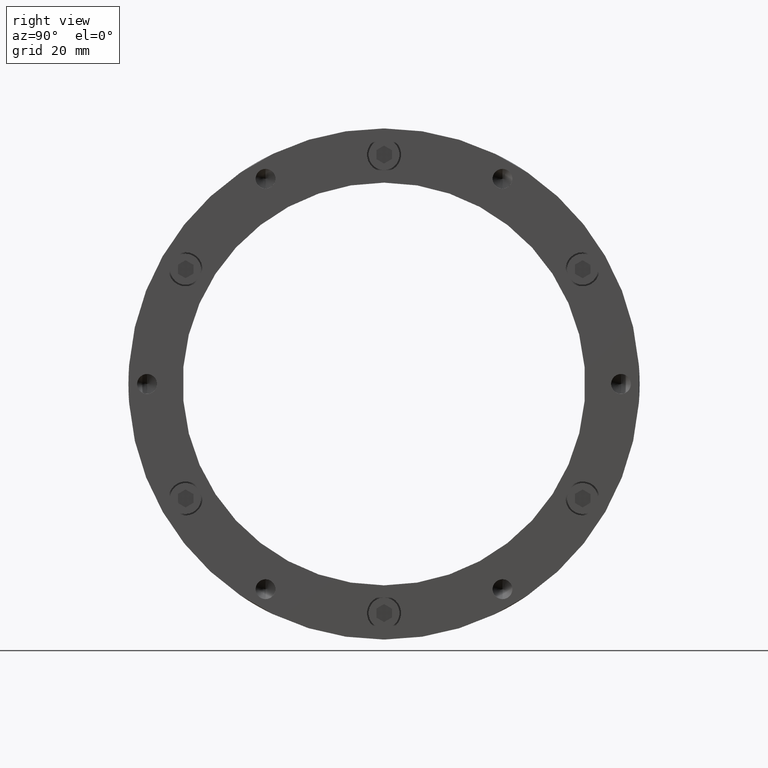
[diagram: clean part render]
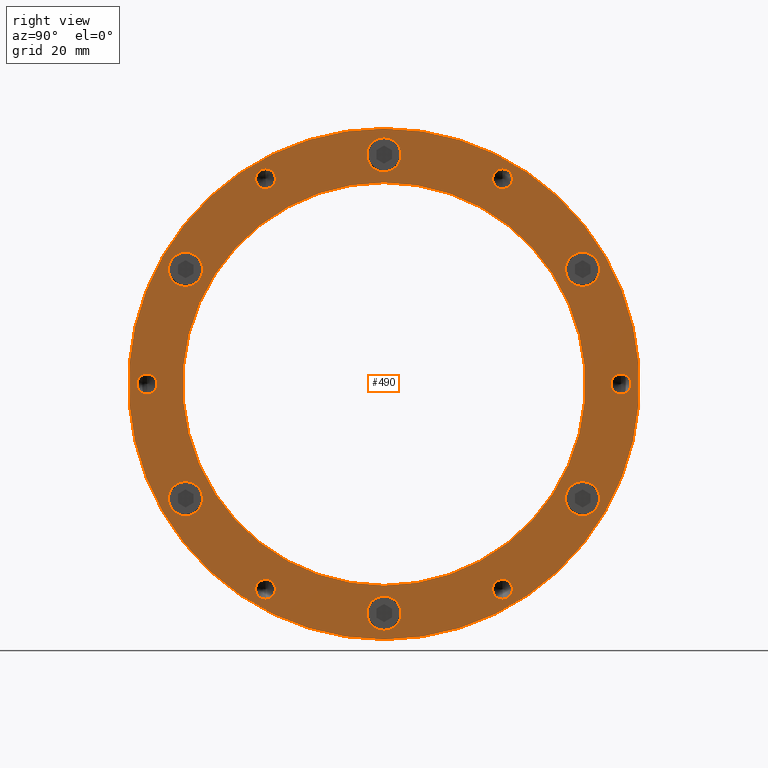
[diagram: same view with one face highlighted and labeled with its STEP entity id]
A machine part, right view. The second image highlights one B-rep face of the part: STEP entity #490.
In plain terms, the highlighted planar face has unit normal (1, 0, 0).
Its self-contained STEP definition (entity closure, byte-faithful):
#12 = CIRCLE ( 'NONE', #3628, 3.199999999999994400 ) ;
#18 = CIRCLE ( 'NONE', #3633, 3.200000000000001100 ) ;
#25 = CIRCLE ( 'NONE', #3636, 3.199999999999994400 ) ;
#41 = CIRCLE ( 'NONE', #3609, 5.499999999999998200 ) ;
#300 = CIRCLE ( 'NONE', #3686, 5.500000000000005300 ) ;
#315 = CIRCLE ( 'NONE', #3706, 5.499999999999998200 ) ;
#360 = CIRCLE ( 'NONE', #3676, 5.499999999999998200 ) ;
#390 = CIRCLE ( 'NONE', #3669, 5.500000000000005300 ) ;
#490 = ADVANCED_FACE ( 'NONE', ( #2649, #2644, #2639, #2645, #2648, #2643, #2638, #2636, #2634, #2627, #2625, #2624, #2459, #2458 ), #3094, .T. ) ;
#760 = CARTESIAN_POINT ( 'NONE',  ( 35.99999999999998600, 0.0000000000000000000, 0.0000000000000000000 ) ) ;
#761 = DIRECTION ( 'NONE',  ( -1.000000000000000000, -0.0000000000000000000, -0.0000000000000000000 ) ) ;
#762 = DIRECTION ( 'NONE',  ( 0.0000000000000000000, 0.0000000000000000000, -1.000000000000000000 ) ) ;
#770 = CARTESIAN_POINT ( 'NONE',  ( 35.99999999999998600, 0.0000000000000000000, 0.0000000000000000000 ) ) ;
#771 = DIRECTION ( 'NONE',  ( -1.000000000000000000, -0.0000000000000000000, -0.0000000000000000000 ) ) ;
#772 = DIRECTION ( 'NONE',  ( 0.0000000000000000000, 0.0000000000000000000, -1.000000000000000000 ) ) ;
#780 = CARTESIAN_POINT ( 'NONE',  ( 35.99999999999998600, 0.0000000000000000000, 74.00000000000000000 ) ) ;
#781 = DIRECTION ( 'NONE',  ( -1.000000000000000000, -0.0000000000000000000, -0.0000000000000000000 ) ) ;
#782 = DIRECTION ( 'NONE',  ( 0.0000000000000000000, 0.0000000000000000000, -1.000000000000000000 ) ) ;
#788 = CARTESIAN_POINT ( 'NONE',  ( 35.99999999999998600, -64.08587988004845200, 37.00000000000001400 ) ) ;
#789 = DIRECTION ( 'NONE',  ( -1.000000000000000000, -0.0000000000000000000, -0.0000000000000000000 ) ) ;
#790 = DIRECTION ( 'NONE',  ( 0.0000000000000000000, 0.0000000000000000000, -1.000000000000000000 ) ) ;
#824 = CARTESIAN_POINT ( 'NONE',  ( 35.99999999999998600, 0.0000000000000000000, 0.0000000000000000000 ) ) ;
#825 = DIRECTION ( 'NONE',  ( -1.000000000000000000, -0.0000000000000000000, -0.0000000000000000000 ) ) ;
#826 = DIRECTION ( 'NONE',  ( 0.0000000000000000000, 0.0000000000000000000, -1.000000000000000000 ) ) ;
#827 = CARTESIAN_POINT ( 'NONE',  ( 35.99999999999998600, 0.0000000000000000000, 0.0000000000000000000 ) ) ;
#828 = DIRECTION ( 'NONE',  ( -1.000000000000000000, -0.0000000000000000000, -0.0000000000000000000 ) ) ;
#829 = DIRECTION ( 'NONE',  ( 0.0000000000000000000, 0.0000000000000000000, -1.000000000000000000 ) ) ;
#830 = CARTESIAN_POINT ( 'NONE',  ( 35.99999999999998600, 0.0000000000000000000, 74.00000000000000000 ) ) ;
#831 = DIRECTION ( 'NONE',  ( -1.000000000000000000, -0.0000000000000000000, -0.0000000000000000000 ) ) ;
#832 = DIRECTION ( 'NONE',  ( 0.0000000000000000000, 0.0000000000000000000, -1.000000000000000000 ) ) ;
#837 = CARTESIAN_POINT ( 'NONE',  ( 35.99999999999998600, -64.08587988004845200, 37.00000000000001400 ) ) ;
#838 = DIRECTION ( 'NONE',  ( -1.000000000000000000, -0.0000000000000000000, -0.0000000000000000000 ) ) ;
#839 = DIRECTION ( 'NONE',  ( 0.0000000000000000000, 0.0000000000000000000, -1.000000000000000000 ) ) ;
#843 = CARTESIAN_POINT ( 'NONE',  ( 35.99999999999998600, -64.08587988004848100, -36.99999999999998600 ) ) ;
#844 = DIRECTION ( 'NONE',  ( -1.000000000000000000, -0.0000000000000000000, -0.0000000000000000000 ) ) ;
#845 = DIRECTION ( 'NONE',  ( 0.0000000000000000000, 0.0000000000000000000, -1.000000000000000000 ) ) ;
#849 = CARTESIAN_POINT ( 'NONE',  ( 35.99999999999998600, -1.332268000000000100E-014, -74.00000000000000000 ) ) ;
#850 = DIRECTION ( 'NONE',  ( -1.000000000000000000, -0.0000000000000000000, -0.0000000000000000000 ) ) ;
#851 = DIRECTION ( 'NONE',  ( 0.0000000000000000000, 0.0000000000000000000, -1.000000000000000000 ) ) ;
#855 = CARTESIAN_POINT ( 'NONE',  ( 35.99999999999998600, 64.08587988004843800, -37.00000000000003600 ) ) ;
#856 = DIRECTION ( 'NONE',  ( -1.000000000000000000, -0.0000000000000000000, -0.0000000000000000000 ) ) ;
#857 = DIRECTION ( 'NONE',  ( 0.0000000000000000000, 0.0000000000000000000, -1.000000000000000000 ) ) ;
#861 = CARTESIAN_POINT ( 'NONE',  ( 35.99999999999998600, 64.08587988004850900, 36.99999999999995000 ) ) ;
#862 = DIRECTION ( 'NONE',  ( -1.000000000000000000, -0.0000000000000000000, -0.0000000000000000000 ) ) ;
#863 = DIRECTION ( 'NONE',  ( 0.0000000000000000000, 0.0000000000000000000, -1.000000000000000000 ) ) ;
#867 = CARTESIAN_POINT ( 'NONE',  ( 35.99999999999998600, -38.25000000000004300, 66.25094338950955800 ) ) ;
#868 = DIRECTION ( 'NONE',  ( -1.000000000000000000, -0.0000000000000000000, -0.0000000000000000000 ) ) ;
#869 = DIRECTION ( 'NONE',  ( 0.0000000000000000000, 0.0000000000000000000, -1.000000000000000000 ) ) ;
#870 = CARTESIAN_POINT ( 'NONE',  ( 35.99999999999998600, -76.50000000000002800, -3.108623999999999800E-014 ) ) ;
#871 = DIRECTION ( 'NONE',  ( -1.000000000000000000, -0.0000000000000000000, -0.0000000000000000000 ) ) ;
#872 = DIRECTION ( 'NONE',  ( 0.0000000000000000000, 0.0000000000000000000, -1.000000000000000000 ) ) ;
#873 = CARTESIAN_POINT ( 'NONE',  ( 35.99999999999998600, -38.24999999999999300, -66.25094338950958700 ) ) ;
#874 = DIRECTION ( 'NONE',  ( -1.000000000000000000, -0.0000000000000000000, -0.0000000000000000000 ) ) ;
#875 = DIRECTION ( 'NONE',  ( 0.0000000000000000000, 0.0000000000000000000, -1.000000000000000000 ) ) ;
#876 = CARTESIAN_POINT ( 'NONE',  ( 35.99999999999998600, 38.25000000000004300, -66.25094338950955800 ) ) ;
#877 = DIRECTION ( 'NONE',  ( -1.000000000000000000, -0.0000000000000000000, -0.0000000000000000000 ) ) ;
#878 = DIRECTION ( 'NONE',  ( 0.0000000000000000000, 0.0000000000000000000, -1.000000000000000000 ) ) ;
#879 = CARTESIAN_POINT ( 'NONE',  ( 35.99999999999998600, 76.50000000000002800, 0.0000000000000000000 ) ) ;
#880 = DIRECTION ( 'NONE',  ( -1.000000000000000000, -0.0000000000000000000, -0.0000000000000000000 ) ) ;
#881 = DIRECTION ( 'NONE',  ( 0.0000000000000000000, 0.0000000000000000000, -1.000000000000000000 ) ) ;
#882 = CARTESIAN_POINT ( 'NONE',  ( 35.99999999999998600, 38.25000000000003600, 66.25094338950957300 ) ) ;
#883 = DIRECTION ( 'NONE',  ( -1.000000000000000000, -0.0000000000000000000, -0.0000000000000000000 ) ) ;
#884 = DIRECTION ( 'NONE',  ( 0.0000000000000000000, 0.0000000000000000000, -1.000000000000000000 ) ) ;
#934 = CARTESIAN_POINT ( 'NONE',  ( 35.99999999999998600, 38.25000000000003600, 66.25094338950957300 ) ) ;
#935 = DIRECTION ( 'NONE',  ( -1.000000000000000000, -0.0000000000000000000, -0.0000000000000000000 ) ) ;
#936 = DIRECTION ( 'NONE',  ( 0.0000000000000000000, 0.0000000000000000000, -1.000000000000000000 ) ) ;
#944 = CARTESIAN_POINT ( 'NONE',  ( 35.99999999999998600, 76.50000000000002800, 0.0000000000000000000 ) ) ;
#945 = DIRECTION ( 'NONE',  ( -1.000000000000000000, -0.0000000000000000000, -0.0000000000000000000 ) ) ;
#946 = DIRECTION ( 'NONE',  ( 0.0000000000000000000, 0.0000000000000000000, -1.000000000000000000 ) ) ;
#954 = CARTESIAN_POINT ( 'NONE',  ( 35.99999999999998600, 38.25000000000004300, -66.25094338950955800 ) ) ;
#955 = DIRECTION ( 'NONE',  ( -1.000000000000000000, -0.0000000000000000000, -0.0000000000000000000 ) ) ;
#956 = DIRECTION ( 'NONE',  ( 0.0000000000000000000, 0.0000000000000000000, -1.000000000000000000 ) ) ;
#964 = CARTESIAN_POINT ( 'NONE',  ( 35.99999999999998600, -38.24999999999999300, -66.25094338950958700 ) ) ;
#965 = DIRECTION ( 'NONE',  ( -1.000000000000000000, -0.0000000000000000000, -0.0000000000000000000 ) ) ;
#966 = DIRECTION ( 'NONE',  ( 0.0000000000000000000, 0.0000000000000000000, -1.000000000000000000 ) ) ;
#974 = CARTESIAN_POINT ( 'NONE',  ( 35.99999999999998600, -76.50000000000002800, -3.108623999999999800E-014 ) ) ;
#975 = DIRECTION ( 'NONE',  ( -1.000000000000000000, -0.0000000000000000000, -0.0000000000000000000 ) ) ;
#976 = DIRECTION ( 'NONE',  ( 0.0000000000000000000, 0.0000000000000000000, -1.000000000000000000 ) ) ;
#984 = CARTESIAN_POINT ( 'NONE',  ( 35.99999999999998600, -38.25000000000004300, 66.25094338950955800 ) ) ;
#985 = DIRECTION ( 'NONE',  ( -1.000000000000000000, -0.0000000000000000000, -0.0000000000000000000 ) ) ;
#986 = DIRECTION ( 'NONE',  ( 0.0000000000000000000, 0.0000000000000000000, -1.000000000000000000 ) ) ;
#994 = CARTESIAN_POINT ( 'NONE',  ( 35.99999999999998600, 64.08587988004850900, 36.99999999999995000 ) ) ;
#995 = DIRECTION ( 'NONE',  ( -1.000000000000000000, -0.0000000000000000000, -0.0000000000000000000 ) ) ;
#996 = DIRECTION ( 'NONE',  ( 0.0000000000000000000, 0.0000000000000000000, -1.000000000000000000 ) ) ;
#1004 = CARTESIAN_POINT ( 'NONE',  ( 35.99999999999998600, 64.08587988004843800, -37.00000000000003600 ) ) ;
#1005 = DIRECTION ( 'NONE',  ( -1.000000000000000000, -0.0000000000000000000, -0.0000000000000000000 ) ) ;
#1006 = DIRECTION ( 'NONE',  ( 0.0000000000000000000, 0.0000000000000000000, -1.000000000000000000 ) ) ;
#1014 = CARTESIAN_POINT ( 'NONE',  ( 35.99999999999998600, -1.332268000000000100E-014, -74.00000000000000000 ) ) ;
#1015 = DIRECTION ( 'NONE',  ( -1.000000000000000000, -0.0000000000000000000, -0.0000000000000000000 ) ) ;
#1016 = DIRECTION ( 'NONE',  ( 0.0000000000000000000, 0.0000000000000000000, -1.000000000000000000 ) ) ;
#1024 = CARTESIAN_POINT ( 'NONE',  ( 35.99999999999998600, -64.08587988004848100, -36.99999999999998600 ) ) ;
#1025 = DIRECTION ( 'NONE',  ( -1.000000000000000000, -0.0000000000000000000, -0.0000000000000000000 ) ) ;
#1026 = DIRECTION ( 'NONE',  ( 0.0000000000000000000, 0.0000000000000000000, -1.000000000000000000 ) ) ;
#1966 = ORIENTED_EDGE ( 'NONE', *, *, #2940, .T. ) ;
#1968 = ORIENTED_EDGE ( 'NONE', *, *, #2848, .T. ) ;
#1973 = ORIENTED_EDGE ( 'NONE', *, *, #2924, .T. ) ;
#1977 = ORIENTED_EDGE ( 'NONE', *, *, #2836, .T. ) ;
#1980 = ORIENTED_EDGE ( 'NONE', *, *, #2916, .T. ) ;
#1998 = ORIENTED_EDGE ( 'NONE', *, *, #2827, .T. ) ;
#2003 = ORIENTED_EDGE ( 'NONE', *, *, #2948, .T. ) ;
#2005 = ORIENTED_EDGE ( 'NONE', *, *, #2908, .T. ) ;
#2007 = ORIENTED_EDGE ( 'NONE', *, *, #2900, .T. ) ;
#2014 = ORIENTED_EDGE ( 'NONE', *, *, #2854, .T. ) ;
#2016 = ORIENTED_EDGE ( 'NONE', *, *, #2852, .T. ) ;
#2035 = ORIENTED_EDGE ( 'NONE', *, *, #2600, .T. ) ;
#2046 = ORIENTED_EDGE ( 'NONE', *, *, #2840, .T. ) ;
#2070 = ORIENTED_EDGE ( 'NONE', *, *, #2958, .T. ) ;
#2071 = ORIENTED_EDGE ( 'NONE', *, *, #2817, .T. ) ;
#2072 = ORIENTED_EDGE ( 'NONE', *, *, #2604, .T. ) ;
#2075 = ORIENTED_EDGE ( 'NONE', *, *, #2815, .F. ) ;
#2076 = ORIENTED_EDGE ( 'NONE', *, *, #2823, .T. ) ;
#2077 = ORIENTED_EDGE ( 'NONE', *, *, #2608, .T. ) ;
#2078 = ORIENTED_EDGE ( 'NONE', *, *, #2819, .T. ) ;
#2081 = ORIENTED_EDGE ( 'NONE', *, *, #2832, .T. ) ;
#2086 = ORIENTED_EDGE ( 'NONE', *, *, #2966, .T. ) ;
#2092 = ORIENTED_EDGE ( 'NONE', *, *, #2974, .T. ) ;
#2100 = ORIENTED_EDGE ( 'NONE', *, *, #2932, .T. ) ;
#2112 = ORIENTED_EDGE ( 'NONE', *, *, #2596, .F. ) ;
#2120 = ORIENTED_EDGE ( 'NONE', *, *, #2856, .T. ) ;
#2123 = ORIENTED_EDGE ( 'NONE', *, *, #2846, .T. ) ;
#2128 = ORIENTED_EDGE ( 'NONE', *, *, #2850, .T. ) ;
#2151 = CIRCLE ( 'NONE', #3617, 5.500000000000005300 ) ;
#2153 = CIRCLE ( 'NONE', #3712, 5.499999999999998200 ) ;
#2155 = CIRCLE ( 'NONE', #3745, 5.500000000000005300 ) ;
#2156 = CIRCLE ( 'NONE', #3755, 65.00000000000000000 ) ;
#2157 = CIRCLE ( 'NONE', #3756, 82.50000000000000000 ) ;
#2171 = CIRCLE ( 'NONE', #3794, 5.499999999999998200 ) ;
#2177 = CIRCLE ( 'NONE', #3796, 5.500000000000005300 ) ;
#2182 = CIRCLE ( 'NONE', #3799, 65.00000000000000000 ) ;
#2188 = CIRCLE ( 'NONE', #3801, 82.50000000000000000 ) ;
#2242 = EDGE_LOOP ( 'NONE', ( #2035, #2071 ) ) ;
#2243 = EDGE_LOOP ( 'NONE', ( #2070, #1977 ) ) ;
#2245 = EDGE_LOOP ( 'NONE', ( #2072, #2078 ) ) ;
#2246 = EDGE_LOOP ( 'NONE', ( #2086, #2081 ) ) ;
#2247 = EDGE_LOOP ( 'NONE', ( #2092, #1998 ) ) ;
#2248 = EDGE_LOOP ( 'NONE', ( #2077, #2076 ) ) ;
#2249 = EDGE_LOOP ( 'NONE', ( #2003, #2046 ) ) ;
#2250 = EDGE_LOOP ( 'NONE', ( #1966, #2123 ) ) ;
#2251 = EDGE_LOOP ( 'NONE', ( #2100, #1968 ) ) ;
#2252 = EDGE_LOOP ( 'NONE', ( #1973, #2128 ) ) ;
#2253 = EDGE_LOOP ( 'NONE', ( #1980, #2016 ) ) ;
#2254 = EDGE_LOOP ( 'NONE', ( #2005, #2014 ) ) ;
#2255 = EDGE_LOOP ( 'NONE', ( #2007, #2120 ) ) ;
#2256 = EDGE_LOOP ( 'NONE', ( #2075, #2112 ) ) ;
#2300 = VERTEX_POINT ( 'NONE', #3241 ) ;
#2301 = VERTEX_POINT ( 'NONE', #3239 ) ;
#2304 = VERTEX_POINT ( 'NONE', #3243 ) ;
#2305 = VERTEX_POINT ( 'NONE', #3244 ) ;
#2308 = VERTEX_POINT ( 'NONE', #3247 ) ;
#2309 = VERTEX_POINT ( 'NONE', #3248 ) ;
#2312 = VERTEX_POINT ( 'NONE', #3251 ) ;
#2313 = VERTEX_POINT ( 'NONE', #3252 ) ;
#2316 = VERTEX_POINT ( 'NONE', #3255 ) ;
#2317 = VERTEX_POINT ( 'NONE', #3256 ) ;
#2320 = VERTEX_POINT ( 'NONE', #3259 ) ;
#2321 = VERTEX_POINT ( 'NONE', #3260 ) ;
#2324 = VERTEX_POINT ( 'NONE', #3263 ) ;
#2325 = VERTEX_POINT ( 'NONE', #3264 ) ;
#2328 = VERTEX_POINT ( 'NONE', #3267 ) ;
#2329 = VERTEX_POINT ( 'NONE', #3268 ) ;
#2332 = VERTEX_POINT ( 'NONE', #3271 ) ;
#2333 = VERTEX_POINT ( 'NONE', #3272 ) ;
#2336 = VERTEX_POINT ( 'NONE', #3275 ) ;
#2337 = VERTEX_POINT ( 'NONE', #3276 ) ;
#2340 = VERTEX_POINT ( 'NONE', #3279 ) ;
#2341 = VERTEX_POINT ( 'NONE', #3280 ) ;
#2344 = VERTEX_POINT ( 'NONE', #3283 ) ;
#2345 = VERTEX_POINT ( 'NONE', #3284 ) ;
#2348 = VERTEX_POINT ( 'NONE', #3287 ) ;
#2349 = VERTEX_POINT ( 'NONE', #3288 ) ;
#2351 = VERTEX_POINT ( 'NONE', #3290 ) ;
#2352 = VERTEX_POINT ( 'NONE', #3291 ) ;
#2458 = FACE_OUTER_BOUND ( 'NONE', #2256, .T. ) ;
#2459 = FACE_BOUND ( 'NONE', #2255, .T. ) ;
#2596 = EDGE_CURVE ( 'NONE', #2352, #2351, #2188, .T. ) ;
#2600 = EDGE_CURVE ( 'NONE', #2349, #2348, #2182, .T. ) ;
#2604 = EDGE_CURVE ( 'NONE', #2345, #2344, #2177, .T. ) ;
#2608 = EDGE_CURVE ( 'NONE', #2341, #2340, #2171, .T. ) ;
#2624 = FACE_BOUND ( 'NONE', #2254, .T. ) ;
#2625 = FACE_BOUND ( 'NONE', #2253, .T. ) ;
#2627 = FACE_BOUND ( 'NONE', #2252, .T. ) ;
#2634 = FACE_BOUND ( 'NONE', #2251, .T. ) ;
#2636 = FACE_BOUND ( 'NONE', #2250, .T. ) ;
#2638 = FACE_BOUND ( 'NONE', #2249, .T. ) ;
#2639 = FACE_BOUND ( 'NONE', #2248, .T. ) ;
#2643 = FACE_BOUND ( 'NONE', #2243, .T. ) ;
#2644 = FACE_BOUND ( 'NONE', #2245, .T. ) ;
#2645 = FACE_BOUND ( 'NONE', #2247, .T. ) ;
#2648 = FACE_BOUND ( 'NONE', #2246, .T. ) ;
#2649 = FACE_BOUND ( 'NONE', #2242, .T. ) ;
#2815 = EDGE_CURVE ( 'NONE', #2351, #2352, #2157, .T. ) ;
#2817 = EDGE_CURVE ( 'NONE', #2348, #2349, #2156, .T. ) ;
#2819 = EDGE_CURVE ( 'NONE', #2344, #2345, #2155, .T. ) ;
#2823 = EDGE_CURVE ( 'NONE', #2340, #2341, #2153, .T. ) ;
#2827 = EDGE_CURVE ( 'NONE', #2336, #2337, #315, .T. ) ;
#2832 = EDGE_CURVE ( 'NONE', #2332, #2333, #300, .T. ) ;
#2836 = EDGE_CURVE ( 'NONE', #2328, #2329, #360, .T. ) ;
#2840 = EDGE_CURVE ( 'NONE', #2324, #2325, #390, .T. ) ;
#2846 = EDGE_CURVE ( 'NONE', #2320, #2321, #4761, .T. ) ;
#2848 = EDGE_CURVE ( 'NONE', #2316, #2317, #4760, .T. ) ;
#2850 = EDGE_CURVE ( 'NONE', #2312, #2313, #4759, .T. ) ;
#2852 = EDGE_CURVE ( 'NONE', #2308, #2309, #4758, .T. ) ;
#2854 = EDGE_CURVE ( 'NONE', #2304, #2305, #4757, .T. ) ;
#2856 = EDGE_CURVE ( 'NONE', #2300, #2301, #4756, .T. ) ;
#2900 = EDGE_CURVE ( 'NONE', #2301, #2300, #25, .T. ) ;
#2908 = EDGE_CURVE ( 'NONE', #2305, #2304, #18, .T. ) ;
#2916 = EDGE_CURVE ( 'NONE', #2309, #2308, #12, .T. ) ;
#2924 = EDGE_CURVE ( 'NONE', #2313, #2312, #3819, .T. ) ;
#2932 = EDGE_CURVE ( 'NONE', #2317, #2316, #3823, .T. ) ;
#2940 = EDGE_CURVE ( 'NONE', #2321, #2320, #3815, .T. ) ;
#2948 = EDGE_CURVE ( 'NONE', #2325, #2324, #2151, .T. ) ;
#2958 = EDGE_CURVE ( 'NONE', #2329, #2328, #4622, .T. ) ;
#2966 = EDGE_CURVE ( 'NONE', #2333, #2332, #3826, .T. ) ;
#2974 = EDGE_CURVE ( 'NONE', #2337, #2336, #41, .T. ) ;
#3089 = DIRECTION ( 'NONE',  ( 1.000000000000000000, -0.0000000000000000000, 0.0000000000000000000 ) ) ;
#3093 = CARTESIAN_POINT ( 'NONE',  ( 35.99999999999998600, 73.75000000000000000, 0.0000000000000000000 ) ) ;
#3094 = PLANE ( 'NONE',  #3689 ) ;
#3095 = DIRECTION ( 'NONE',  ( 0.0000000000000000000, 0.0000000000000000000, -1.000000000000000000 ) ) ;
#3239 = CARTESIAN_POINT ( 'NONE',  ( 35.99999999999998600, 38.25000000000003600, 63.05094338950957700 ) ) ;
#3241 = CARTESIAN_POINT ( 'NONE',  ( 35.99999999999998600, 38.25000000000003600, 69.45094338950956100 ) ) ;
#3243 = CARTESIAN_POINT ( 'NONE',  ( 35.99999999999998600, 76.50000000000002800, 3.200000000000001100 ) ) ;
#3244 = CARTESIAN_POINT ( 'NONE',  ( 35.99999999999998600, 76.50000000000002800, -3.200000000000001100 ) ) ;
#3247 = CARTESIAN_POINT ( 'NONE',  ( 35.99999999999998600, 38.25000000000004300, -63.05094338950956300 ) ) ;
#3248 = CARTESIAN_POINT ( 'NONE',  ( 35.99999999999998600, 38.25000000000004300, -69.45094338950954700 ) ) ;
#3251 = CARTESIAN_POINT ( 'NONE',  ( 35.99999999999998600, -38.24999999999999300, -63.05094338950959100 ) ) ;
#3252 = CARTESIAN_POINT ( 'NONE',  ( 35.99999999999998600, -38.24999999999999300, -69.45094338950957500 ) ) ;
#3255 = CARTESIAN_POINT ( 'NONE',  ( 35.99999999999998600, -76.50000000000002800, 3.199999999999970000 ) ) ;
#3256 = CARTESIAN_POINT ( 'NONE',  ( 35.99999999999998600, -76.50000000000002800, -3.200000000000032200 ) ) ;
#3259 = CARTESIAN_POINT ( 'NONE',  ( 35.99999999999998600, -38.25000000000004300, 69.45094338950954700 ) ) ;
#3260 = CARTESIAN_POINT ( 'NONE',  ( 35.99999999999998600, -38.25000000000004300, 63.05094338950956300 ) ) ;
#3263 = CARTESIAN_POINT ( 'NONE',  ( 35.99999999999998600, 64.08587988004850900, 42.49999999999995700 ) ) ;
#3264 = CARTESIAN_POINT ( 'NONE',  ( 35.99999999999998600, 64.08587988004850900, 31.49999999999994300 ) ) ;
#3267 = CARTESIAN_POINT ( 'NONE',  ( 35.99999999999998600, 64.08587988004843800, -31.50000000000003600 ) ) ;
#3268 = CARTESIAN_POINT ( 'NONE',  ( 35.99999999999998600, 64.08587988004843800, -42.50000000000002800 ) ) ;
#3271 = CARTESIAN_POINT ( 'NONE',  ( 35.99999999999998600, -1.264912426046895700E-014, -68.49999999999998600 ) ) ;
#3272 = CARTESIAN_POINT ( 'NONE',  ( 35.99999999999998600, -1.332268000000000100E-014, -79.50000000000000000 ) ) ;
#3275 = CARTESIAN_POINT ( 'NONE',  ( 35.99999999999998600, -64.08587988004848100, -31.49999999999998600 ) ) ;
#3276 = CARTESIAN_POINT ( 'NONE',  ( 35.99999999999998600, -64.08587988004848100, -42.49999999999998600 ) ) ;
#3279 = CARTESIAN_POINT ( 'NONE',  ( 35.99999999999998600, -64.08587988004845200, 42.50000000000000700 ) ) ;
#3280 = CARTESIAN_POINT ( 'NONE',  ( 35.99999999999998600, -64.08587988004845200, 31.50000000000001400 ) ) ;
#3283 = CARTESIAN_POINT ( 'NONE',  ( 35.99999999999998600, 6.735557395310435100E-016, 79.50000000000000000 ) ) ;
#3284 = CARTESIAN_POINT ( 'NONE',  ( 35.99999999999998600, 0.0000000000000000000, 68.49999999999998600 ) ) ;
#3287 = CARTESIAN_POINT ( 'NONE',  ( 35.99999999999998600, 7.960204194457797300E-015, 65.00000000000000000 ) ) ;
#3288 = CARTESIAN_POINT ( 'NONE',  ( 35.99999999999998600, 0.0000000000000000000, -65.00000000000000000 ) ) ;
#3290 = CARTESIAN_POINT ( 'NONE',  ( 35.99999999999998600, 0.0000000000000000000, -82.50000000000000000 ) ) ;
#3291 = CARTESIAN_POINT ( 'NONE',  ( 35.99999999999998600, 1.010333609296566400E-014, 82.50000000000000000 ) ) ;
#3609 = AXIS2_PLACEMENT_3D ( 'NONE', #1024, #1025, #1026 ) ;
#3612 = AXIS2_PLACEMENT_3D ( 'NONE', #1014, #1015, #1016 ) ;
#3615 = AXIS2_PLACEMENT_3D ( 'NONE', #1004, #1005, #1006 ) ;
#3617 = AXIS2_PLACEMENT_3D ( 'NONE', #994, #995, #996 ) ;
#3620 = AXIS2_PLACEMENT_3D ( 'NONE', #984, #985, #986 ) ;
#3623 = AXIS2_PLACEMENT_3D ( 'NONE', #974, #975, #976 ) ;
#3625 = AXIS2_PLACEMENT_3D ( 'NONE', #964, #965, #966 ) ;
#3628 = AXIS2_PLACEMENT_3D ( 'NONE', #954, #955, #956 ) ;
#3633 = AXIS2_PLACEMENT_3D ( 'NONE', #944, #945, #946 ) ;
#3636 = AXIS2_PLACEMENT_3D ( 'NONE', #934, #935, #936 ) ;
#3652 = AXIS2_PLACEMENT_3D ( 'NONE', #882, #883, #884 ) ;
#3653 = AXIS2_PLACEMENT_3D ( 'NONE', #879, #880, #881 ) ;
#3654 = AXIS2_PLACEMENT_3D ( 'NONE', #876, #877, #878 ) ;
#3659 = AXIS2_PLACEMENT_3D ( 'NONE', #873, #874, #875 ) ;
#3666 = AXIS2_PLACEMENT_3D ( 'NONE', #870, #871, #872 ) ;
#3667 = AXIS2_PLACEMENT_3D ( 'NONE', #867, #868, #869 ) ;
#3669 = AXIS2_PLACEMENT_3D ( 'NONE', #861, #862, #863 ) ;
#3676 = AXIS2_PLACEMENT_3D ( 'NONE', #855, #856, #857 ) ;
#3686 = AXIS2_PLACEMENT_3D ( 'NONE', #849, #850, #851 ) ;
#3689 = AXIS2_PLACEMENT_3D ( 'NONE', #3093, #3089, #3095 ) ;
#3706 = AXIS2_PLACEMENT_3D ( 'NONE', #843, #844, #845 ) ;
#3712 = AXIS2_PLACEMENT_3D ( 'NONE', #837, #838, #839 ) ;
#3745 = AXIS2_PLACEMENT_3D ( 'NONE', #830, #831, #832 ) ;
#3755 = AXIS2_PLACEMENT_3D ( 'NONE', #827, #828, #829 ) ;
#3756 = AXIS2_PLACEMENT_3D ( 'NONE', #824, #825, #826 ) ;
#3794 = AXIS2_PLACEMENT_3D ( 'NONE', #788, #789, #790 ) ;
#3796 = AXIS2_PLACEMENT_3D ( 'NONE', #780, #781, #782 ) ;
#3799 = AXIS2_PLACEMENT_3D ( 'NONE', #770, #771, #772 ) ;
#3801 = AXIS2_PLACEMENT_3D ( 'NONE', #760, #761, #762 ) ;
#3815 = CIRCLE ( 'NONE', #3620, 3.199999999999994400 ) ;
#3819 = CIRCLE ( 'NONE', #3625, 3.199999999999994400 ) ;
#3823 = CIRCLE ( 'NONE', #3623, 3.200000000000001100 ) ;
#3826 = CIRCLE ( 'NONE', #3612, 5.500000000000005300 ) ;
#4622 = CIRCLE ( 'NONE', #3615, 5.499999999999998200 ) ;
#4756 = CIRCLE ( 'NONE', #3652, 3.199999999999994400 ) ;
#4757 = CIRCLE ( 'NONE', #3653, 3.200000000000001100 ) ;
#4758 = CIRCLE ( 'NONE', #3654, 3.199999999999994400 ) ;
#4759 = CIRCLE ( 'NONE', #3659, 3.199999999999994400 ) ;
#4760 = CIRCLE ( 'NONE', #3666, 3.200000000000001100 ) ;
#4761 = CIRCLE ( 'NONE', #3667, 3.199999999999994400 ) ;